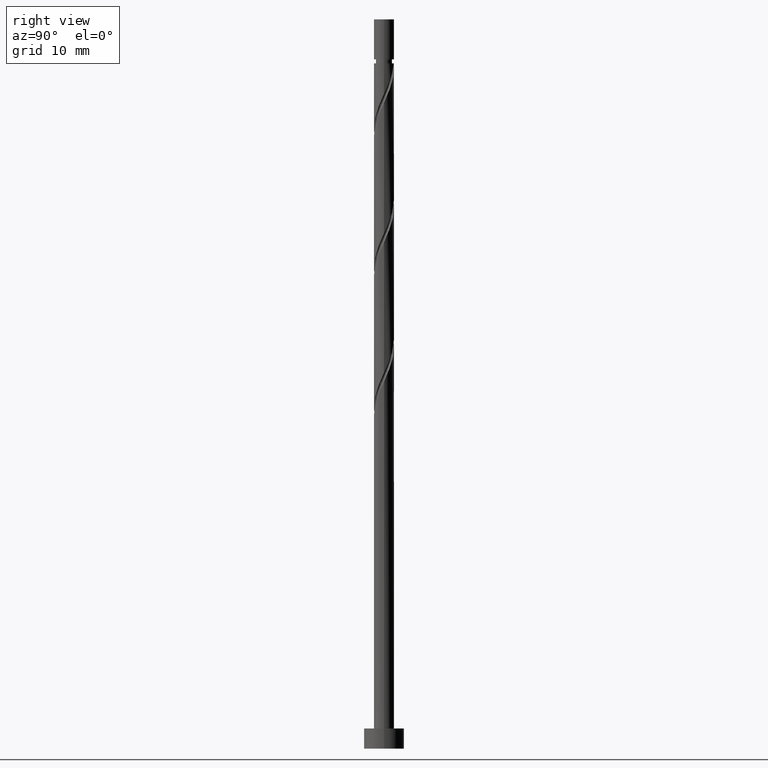
[diagram: clean part render]
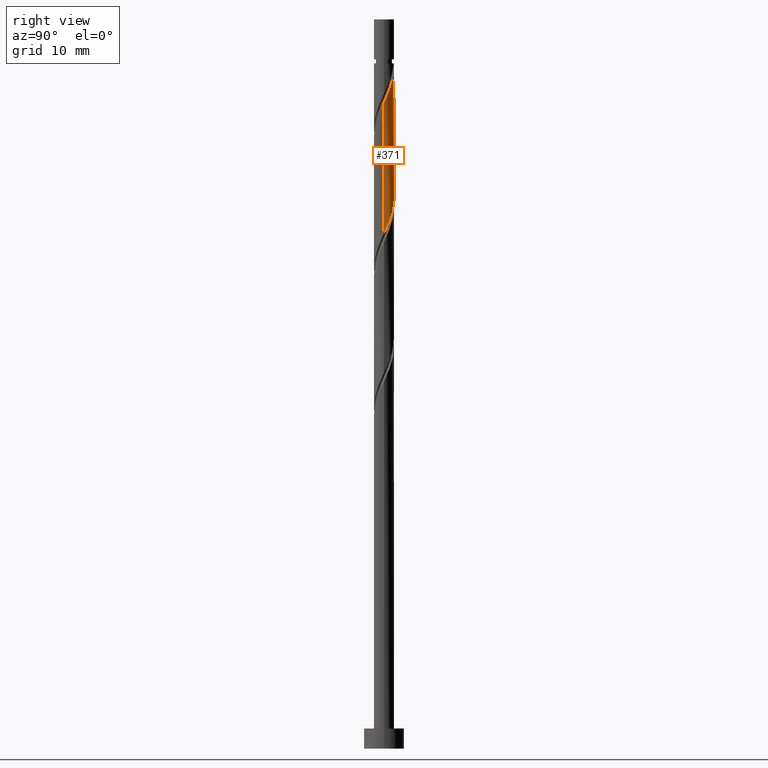
[diagram: same view with one face highlighted and labeled with its STEP entity id]
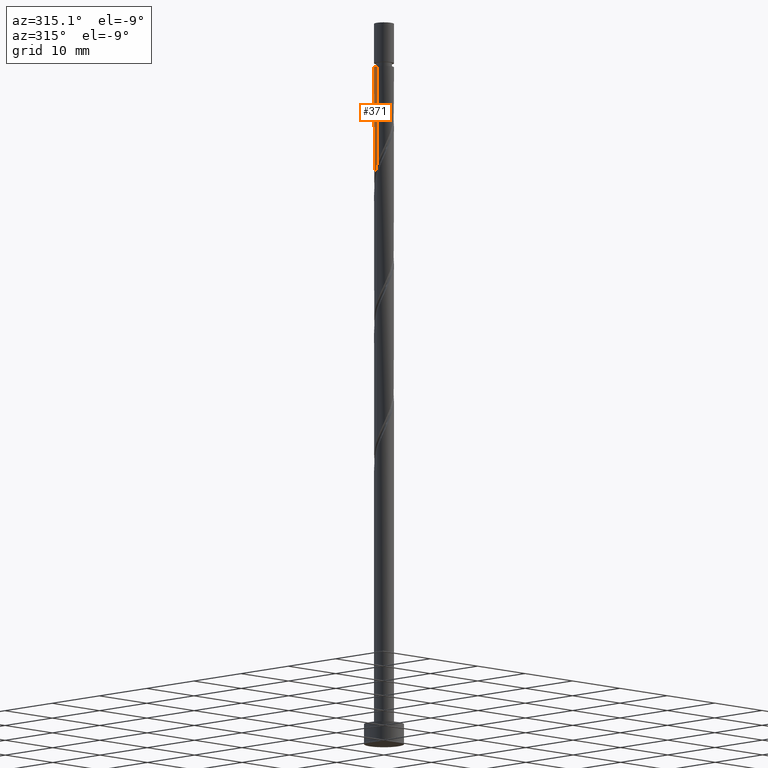
[diagram: same view with one face highlighted and labeled with its STEP entity id]
A machine part, right view. The second image highlights one B-rep face of the part: STEP entity #371.
A second angle (auxiliary view) of the same face is appended — the face is thin or edge-on in the first view.
In plain terms, the highlighted cylindrical surface (edge-blend (fillet) strip) has radius 1.5 mm, axis along (-0, -0, -1).
Its self-contained STEP definition (entity closure, byte-faithful):
#51 = EDGE_CURVE ( 'NONE', #275, #239, #1388, .T. ) ;
#76 = CARTESIAN_POINT ( 'NONE',  ( 0.4064074959020251288, 1.463309815754243015, 100.8440423553933272 ) ) ;
#78 = CARTESIAN_POINT ( 'NONE',  ( 1.266103512756638905, 0.8387040983525493321, 78.96904235539329875 ) ) ;
#85 = CARTESIAN_POINT ( 'NONE',  ( -1.422722841493176960, 0.5313213584090544783, 86.26070902206001279 ) ) ;
#97 = CARTESIAN_POINT ( 'NONE',  ( 0.6225557971272883684, 1.364706664255441293, 100.3232090220599986 ) ) ;
#144 = ORIENTED_EDGE ( 'NONE', *, *, #677, .F. ) ;
#171 = EDGE_CURVE ( 'NONE', #275, #1178, #1328, .T. ) ;
#200 = EDGE_CURVE ( 'NONE', #346, #1239, #1262, .T. ) ;
#205 = CARTESIAN_POINT ( 'NONE',  ( -0.06567110385491489732, 1.517277158506825430, 101.8857090220599844 ) ) ;
#207 = CARTESIAN_POINT ( 'NONE',  ( -1.500000000000000444, 0.1507556722888832856, 87.11204022145572878 ) ) ;
#215 = AXIS2_PLACEMENT_3D ( 'NONE', #423, #1269, #927 ) ;
#226 = CARTESIAN_POINT ( 'NONE',  ( 0.9449621764685305347, 1.188902500061262968, 80.01070902205999857 ) ) ;
#234 = CARTESIAN_POINT ( 'NONE',  ( 1.490293487130532224, 0.1703681960235530202, 77.40654235539332717 ) ) ;
#239 = VERTEX_POINT ( 'NONE', #776 ) ;
#275 = VERTEX_POINT ( 'NONE', #1503 ) ;
#308 = DIRECTION ( 'NONE',  ( -0.000000000000000000, -0.000000000000000000, -1.000000000000000000 ) ) ;
#315 = CARTESIAN_POINT ( 'NONE',  ( 1.500000000000002887, 2.323930931396892317E-16, 96.53340658058969836 ) ) ;
#327 = CARTESIAN_POINT ( 'NONE',  ( 1.188902500061265188, 0.9449621764685313119, 98.76070902205997015 ) ) ;
#329 = CARTESIAN_POINT ( 'NONE',  ( -1.500000000000000666, -1.259420633789291334E-15, 87.44634479686358475 ) ) ;
#346 = VERTEX_POINT ( 'NONE', #315 ) ;
#355 = CARTESIAN_POINT ( 'NONE',  ( -0.8387040983525495541, 1.266103512756638905, 84.17737568872666998 ) ) ;
#371 = ADVANCED_FACE ( 'NONE', ( #1402 ), #574, .T. ) ;
#423 = CARTESIAN_POINT ( 'NONE',  ( 0.000000000000000000, 0.000000000000000000, 102.4065423553933130 ) ) ;
#444 =( BOUNDED_CURVE ( )  B_SPLINE_CURVE ( 2, ( #329, #207, #466, #85, #456, #595, #571, #355, #828, #1567, #1052, #482, #475, #1179, #943, #226, #1550, #78, #950, #1287, #234, #1319, #579 ),
 .UNSPECIFIED., .F., .T. ) 
 B_SPLINE_CURVE_WITH_KNOTS ( ( 3, 2, 2, 2, 2, 2, 2, 2, 2, 2, 2, 3 ),
 ( 0.4295322023138552492, 0.4375000000000000000, 0.4500000000000000111, 0.4625000000000000222, 0.4749999999999999778, 0.4874999999999999889, 0.5000000000000000000, 0.5124999999999999556, 0.5250000000000000222, 0.5374999999999999778, 0.5500000000000000444, 0.5545322023138549161 ),
 .UNSPECIFIED. ) 
 CURVE ( )  GEOMETRIC_REPRESENTATION_ITEM ( )  RATIONAL_B_SPLINE_CURVE ( ( 0.9039174447099322940, 0.9019565955404617030, 0.9090909090909099488, 0.8978984914501261239, 0.9090909090909099488, 0.8978984914501261239, 0.9090909090909099488, 0.8978984914501261239, 0.9090909090909099488, 0.8978984914501261239, 0.9090909090909099488, 0.8978984914501261239, 0.9090909090909099488, 0.8978984914501261239, 0.9090909090909099488, 0.8978984914501261239, 0.9090909090909099488, 0.8978984914501261239, 0.9090909090909099488, 0.8978984914501261239, 0.9090909090909099488, 0.9050328050005747027, 0.9039174447099324050 ) ) 
 REPRESENTATION_ITEM ( '' )  );
#456 = CARTESIAN_POINT ( 'NONE',  ( -1.305812670777220186, 0.7381417674387924510, 85.73987568872665577 ) ) ;
#466 = CARTESIAN_POINT ( 'NONE',  ( -1.470000000000000639, 0.2984962311319860895, 86.78154235539332717 ) ) ;
#475 = CARTESIAN_POINT ( 'NONE',  ( 0.2984962311319863670, 1.470000000000000639, 81.57320902205999857 ) ) ;
#482 = CARTESIAN_POINT ( 'NONE',  ( 0.06567110385491756186, 1.517277158506823431, 82.09404235539332717 ) ) ;
#540 = CARTESIAN_POINT ( 'NONE',  ( 1.500000000000000888, -1.791675782593099320E-15, 77.02967813019692755 ) ) ;
#571 = CARTESIAN_POINT ( 'NONE',  ( -1.013803299206906372, 1.105532844612584720, 84.69820902205999857 ) ) ;
#574 = CYLINDRICAL_SURFACE ( 'NONE', #1434, 1.500000000000000222 ) ;
#579 = CARTESIAN_POINT ( 'NONE',  ( 1.500000000000000888, -1.791675782593099320E-15, 77.02967813019692755 ) ) ;
#595 = CARTESIAN_POINT ( 'NONE',  ( -1.188902500061262968, 0.9449621764685303127, 85.21904235539331296 ) ) ;
#625 = VECTOR ( 'NONE', #308, 1000.000000000000000 ) ;
#642 = ORIENTED_EDGE ( 'NONE', *, *, #200, .T. ) ;
#677 = EDGE_CURVE ( 'NONE', #239, #1239, #444, .T. ) ;
#776 = CARTESIAN_POINT ( 'NONE',  ( -1.500000000000000666, -1.259420633789291334E-15, 87.44634479686358475 ) ) ;
#799 = CARTESIAN_POINT ( 'NONE',  ( -0.2984962311319856454, 1.470000000000001528, 102.4065423553933130 ) ) ;
#807 = DIRECTION ( 'NONE',  ( -1.000000000000000000, 0.000000000000000000, 0.000000000000000000 ) ) ;
#817 = CARTESIAN_POINT ( 'NONE',  ( 1.013803299206908148, 1.105532844612585830, 99.28154235539331296 ) ) ;
#828 = CARTESIAN_POINT ( 'NONE',  ( -0.6225557971272870361, 1.364706664255440183, 83.65654235539334138 ) ) ;
#902 = DIRECTION ( 'NONE',  ( -0.000000000000000000, -0.000000000000000000, -1.000000000000000000 ) ) ;
#927 = DIRECTION ( 'NONE',  ( -1.000000000000000000, 0.000000000000000000, 0.000000000000000000 ) ) ;
#928 = CARTESIAN_POINT ( 'NONE',  ( 1.500000000000003775, 0.1507556722888759859, 96.86771115599756854 ) ) ;
#932 = DIRECTION ( 'NONE',  ( -0.000000000000000000, -0.000000000000000000, -1.000000000000000000 ) ) ;
#933 = CARTESIAN_POINT ( 'NONE',  ( 1.422722841493179402, 0.5313213584090544783, 97.71904235539332717 ) ) ;
#934 =( BOUNDED_CURVE ( )  B_SPLINE_CURVE ( 2, ( #1316, #928, #1066, #933, #1291, #327, #817, #1169, #97, #76, #1285, #205, #1186 ),
 .UNSPECIFIED., .F., .T. ) 
 B_SPLINE_CURVE_WITH_KNOTS ( ( 3, 2, 2, 2, 2, 2, 3 ),
 ( 0.6795322023138549161, 0.6875000000000000000, 0.6999999999999999556, 0.7125000000000000222, 0.7249999999999998668, 0.7374999999999999334, 0.7499999999999998890 ),
 .UNSPECIFIED. ) 
 CURVE ( )  GEOMETRIC_REPRESENTATION_ITEM ( )  RATIONAL_B_SPLINE_CURVE ( ( 0.9039174447099379561, 0.9019565955404669211, 0.9090909090909156109, 0.8978984914501316750, 0.9090909090909156109, 0.8978984914501316750, 0.9090909090909156109, 0.8978984914501316750, 0.9090909090909156109, 0.8978984914501316750, 0.9090909090909156109, 0.8978984914501317860, 0.9090909090909154999 ) ) 
 REPRESENTATION_ITEM ( '' )  );
#943 = CARTESIAN_POINT ( 'NONE',  ( 0.7381417674387928951, 1.305812670777220186, 80.53154235539332717 ) ) ;
#950 = CARTESIAN_POINT ( 'NONE',  ( 1.364706664255440183, 0.6225557971272865920, 78.44820902205998436 ) ) ;
#963 = ORIENTED_EDGE ( 'NONE', *, *, #1119, .F. ) ;
#1040 = CARTESIAN_POINT ( 'NONE',  ( 0.000000000000000000, 0.000000000000000000, 108.9800000000000040 ) ) ;
#1052 = CARTESIAN_POINT ( 'NONE',  ( -0.1703681960235532977, 1.490293487130531780, 82.61487568872665577 ) ) ;
#1066 = CARTESIAN_POINT ( 'NONE',  ( 1.470000000000002860, 0.2984962311319858674, 97.19820902205999857 ) ) ;
#1119 = EDGE_CURVE ( 'NONE', #346, #1178, #934, .T. ) ;
#1123 = EDGE_LOOP ( 'NONE', ( #963, #642, #144, #1481, #1229 ) ) ;
#1169 = CARTESIAN_POINT ( 'NONE',  ( 0.8387040983525509974, 1.266103512756640015, 99.80237568872664156 ) ) ;
#1178 = VERTEX_POINT ( 'NONE', #799 ) ;
#1179 = CARTESIAN_POINT ( 'NONE',  ( 0.5313213584090547004, 1.422722841493176515, 81.05237568872661313 ) ) ;
#1186 = CARTESIAN_POINT ( 'NONE',  ( -0.2984962311319855344, 1.470000000000001528, 102.4065423553933130 ) ) ;
#1229 = ORIENTED_EDGE ( 'NONE', *, *, #171, .T. ) ;
#1239 = VERTEX_POINT ( 'NONE', #540 ) ;
#1262 = LINE ( 'NONE', #1517, #1379 ) ;
#1269 = DIRECTION ( 'NONE',  ( -0.000000000000000000, -0.000000000000000000, -1.000000000000000000 ) ) ;
#1285 = CARTESIAN_POINT ( 'NONE',  ( 0.1703681960235541304, 1.490293487130534222, 101.3648756887266700 ) ) ;
#1287 = CARTESIAN_POINT ( 'NONE',  ( 1.463309815754240573, 0.4064074959020239630, 77.92737568872665577 ) ) ;
#1291 = CARTESIAN_POINT ( 'NONE',  ( 1.305812670777222406, 0.7381417674387931172, 98.23987568872664156 ) ) ;
#1316 = CARTESIAN_POINT ( 'NONE',  ( 1.500000000000002887, 2.323930931396892317E-16, 96.53340658058969836 ) ) ;
#1319 = CARTESIAN_POINT ( 'NONE',  ( 1.499999999999999778, 0.08546060616965463208, 77.21918921940421399 ) ) ;
#1328 = CIRCLE ( 'NONE', #215, 1.500000000000000000 ) ;
#1379 = VECTOR ( 'NONE', #902, 1000.000000000000000 ) ;
#1388 = LINE ( 'NONE', #1403, #625 ) ;
#1402 = FACE_OUTER_BOUND ( 'NONE', #1123, .T. ) ;
#1403 = CARTESIAN_POINT ( 'NONE',  ( -1.500000000000000222, 0.000000000000000000, 108.9800000000000040 ) ) ;
#1434 = AXIS2_PLACEMENT_3D ( 'NONE', #1040, #932, #807 ) ;
#1481 = ORIENTED_EDGE ( 'NONE', *, *, #51, .F. ) ;
#1503 = CARTESIAN_POINT ( 'NONE',  ( -1.500000000000000000, 0.000000000000000000, 102.4065423553933130 ) ) ;
#1517 = CARTESIAN_POINT ( 'NONE',  ( 1.500000000000000222, 1.836970198721030181E-16, 108.9800000000000040 ) ) ;
#1550 = CARTESIAN_POINT ( 'NONE',  ( 1.105532844612584942, 1.013803299206906150, 79.48987568872665577 ) ) ;
#1567 = CARTESIAN_POINT ( 'NONE',  ( -0.4064074959020240740, 1.463309815754240351, 83.13570902205998436 ) ) ;